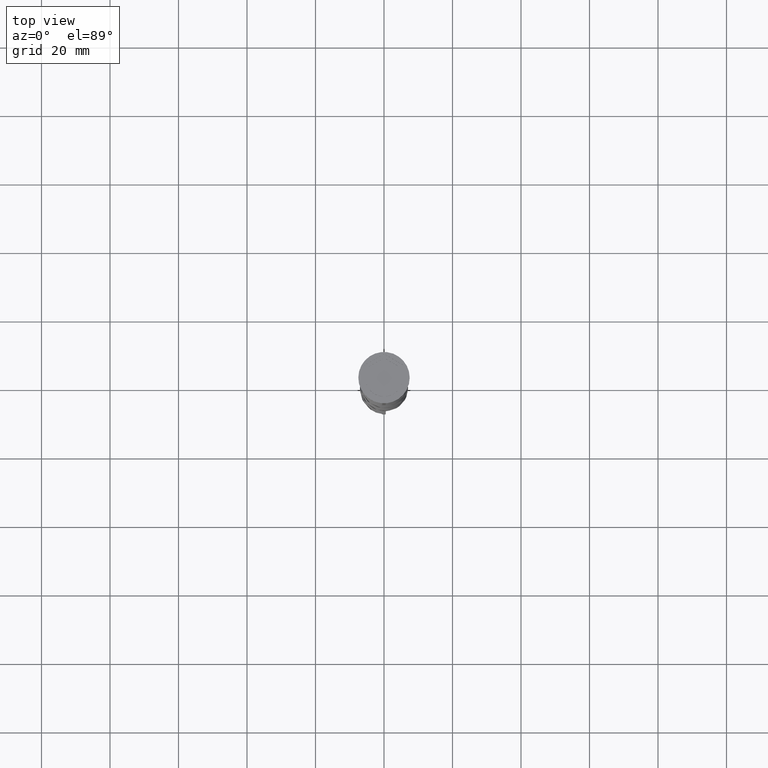
[diagram: clean part render]
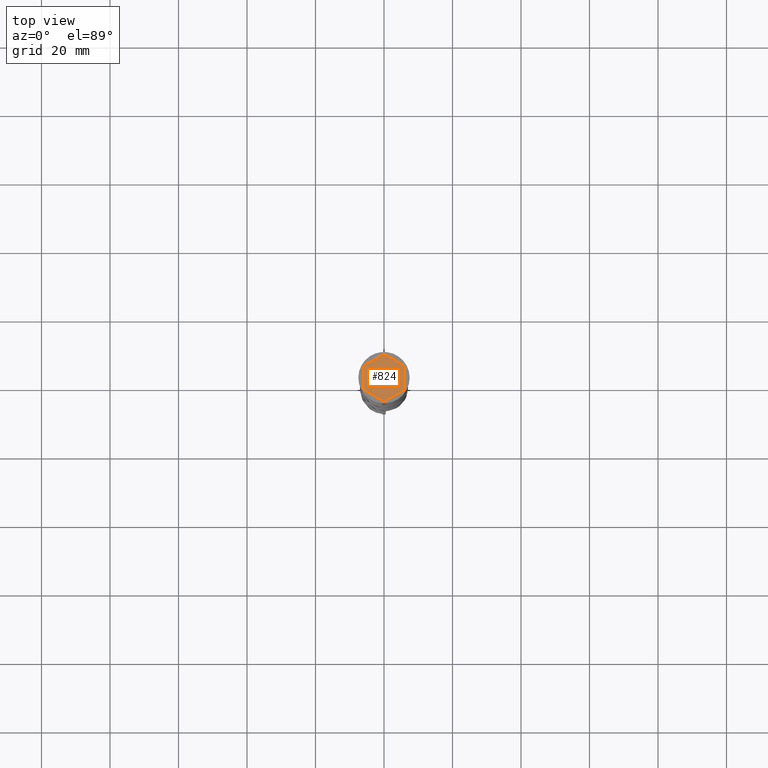
[diagram: same view with one face highlighted and labeled with its STEP entity id]
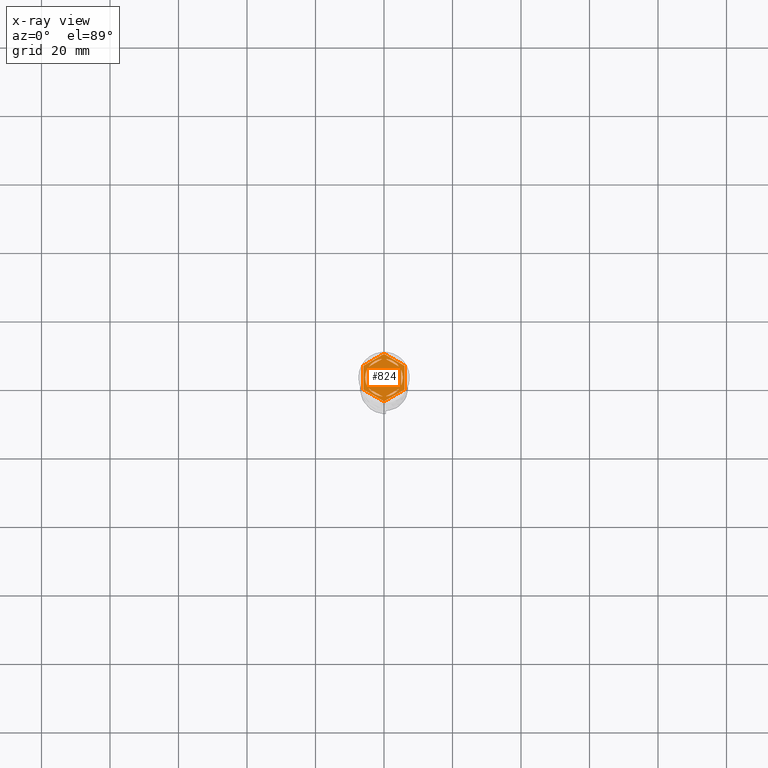
[diagram: x-ray of the same camera — body ghosted, the highlighted face saturated]
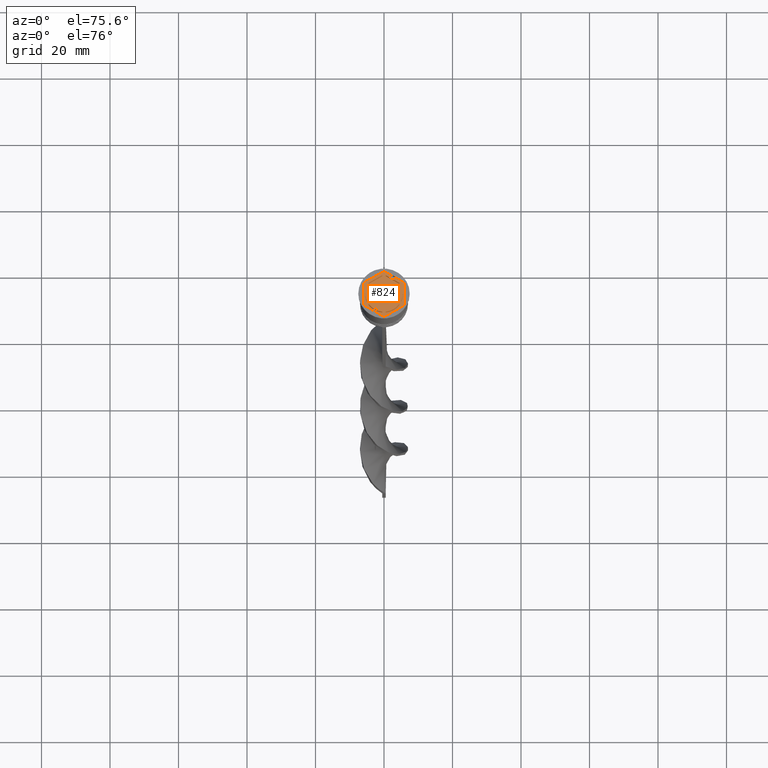
[diagram: same view with one face highlighted and labeled with its STEP entity id]
A machine part, top view. The second image highlights one B-rep face of the part: STEP entity #824.
The next image is the same camera in x-ray: the body ghosted, the highlighted face saturated — about 0% of this face is hidden behind the body in this view.
A second angle (auxiliary view) of the same face is appended — the face is thin or edge-on in the first view.
In plain terms, the highlighted planar face has unit normal (0, 0, 1).
Its self-contained STEP definition (entity closure, byte-faithful):
#8 = VERTEX_POINT ( 'NONE', #3751 ) ;
#9 = VECTOR ( 'NONE', #3438, 1000.000000000000114 ) ;
#17 = CIRCLE ( 'NONE', #406, 5.500000000000001776 ) ;
#37 = EDGE_CURVE ( 'NONE', #2594, #531, #1020, .T. ) ;
#62 = CIRCLE ( 'NONE', #2059, 5.500000000000001776 ) ;
#81 = DIRECTION ( 'NONE',  ( 1.000000000000000000, 0.000000000000000000, 0.000000000000000000 ) ) ;
#133 = CARTESIAN_POINT ( 'NONE',  ( 0.000000000000000000, 0.000000000000000000, -1.000000000000000000 ) ) ;
#146 = AXIS2_PLACEMENT_3D ( 'NONE', #3832, #458, #1956 ) ;
#229 = CARTESIAN_POINT ( 'NONE',  ( 0.5156865167015596274, 5.475770942661155161, -1.000000000000000888 ) ) ;
#326 = DIRECTION ( 'NONE',  ( -0.8660254037844385966, -0.4999999999999998890, 0.000000000000000000 ) ) ;
#337 = EDGE_CURVE ( 'NONE', #999, #8, #3283, .T. ) ;
#348 = VERTEX_POINT ( 'NONE', #900 ) ;
#353 = VERTEX_POINT ( 'NONE', #1783 ) ;
#368 = CARTESIAN_POINT ( 'NONE',  ( 6.000000000000000000, 3.464101615137753942, -1.000000000000000000 ) ) ;
#406 = AXIS2_PLACEMENT_3D ( 'NONE', #1600, #2133, #1849 ) ;
#420 = DIRECTION ( 'NONE',  ( 0.000000000000000000, 0.000000000000000000, 1.000000000000000000 ) ) ;
#446 = AXIS2_PLACEMENT_3D ( 'NONE', #1772, #2296, #3223 ) ;
#450 = VERTEX_POINT ( 'NONE', #3637 ) ;
#458 = DIRECTION ( 'NONE',  ( 0.000000000000000000, 0.000000000000000000, 1.000000000000000000 ) ) ;
#485 = DIRECTION ( 'NONE',  ( -3.004629197474317076E-16, -1.000000000000000000, 0.000000000000000000 ) ) ;
#500 = CARTESIAN_POINT ( 'NONE',  ( 4.999999999999999112, -2.886751345948130432, -1.000000000000000888 ) ) ;
#517 = PLANE ( 'NONE',  #446 ) ;
#525 = CARTESIAN_POINT ( 'NONE',  ( 0.5156865167015526330, -5.475770942661155161, -1.000000000000000888 ) ) ;
#531 = VERTEX_POINT ( 'NONE', #3777 ) ;
#591 = CARTESIAN_POINT ( 'NONE',  ( -5.000000000000000888, -2.886751345948129099, -1.000000000000000888 ) ) ;
#600 = DIRECTION ( 'NONE',  ( 2.503857664561932376E-16, 1.000000000000000000, 0.000000000000000000 ) ) ;
#633 = EDGE_LOOP ( 'NONE', ( #3552, #1551 ) ) ;
#636 = AXIS2_PLACEMENT_3D ( 'NONE', #2180, #420, #81 ) ;
#647 = EDGE_CURVE ( 'NONE', #3686, #450, #2394, .T. ) ;
#654 = DIRECTION ( 'NONE',  ( 0.8660254037844385966, 0.5000000000000001110, -0.000000000000000000 ) ) ;
#662 = CARTESIAN_POINT ( 'NONE',  ( 6.000000000000000000, 3.464101615137753942, -1.000000000000000000 ) ) ;
#677 = EDGE_LOOP ( 'NONE', ( #705, #1811, #844 ) ) ;
#691 = EDGE_CURVE ( 'NONE', #8, #999, #2741, .T. ) ;
#701 = VERTEX_POINT ( 'NONE', #2454 ) ;
#705 = ORIENTED_EDGE ( 'NONE', *, *, #851, .F. ) ;
#769 = VECTOR ( 'NONE', #2073, 1000.000000000000000 ) ;
#770 = VERTEX_POINT ( 'NONE', #2896 ) ;
#795 = CARTESIAN_POINT ( 'NONE',  ( 5.999999999999998224, -3.464101615137753942, -1.000000000000000000 ) ) ;
#800 = VERTEX_POINT ( 'NONE', #3840 ) ;
#824 = ADVANCED_FACE ( 'NONE', ( #3243, #2313, #1118, #2598, #3568, #1997, #1472 ), #517, .T. ) ;
#828 = ORIENTED_EDGE ( 'NONE', *, *, #2460, .T. ) ;
#844 = ORIENTED_EDGE ( 'NONE', *, *, #856, .F. ) ;
#851 = EDGE_CURVE ( 'NONE', #770, #3076, #1008, .T. ) ;
#856 = EDGE_CURVE ( 'NONE', #3076, #800, #62, .T. ) ;
#876 = DIRECTION ( 'NONE',  ( 0.8660254037844385966, 0.5000000000000000000, 0.000000000000000000 ) ) ;
#894 = VECTOR ( 'NONE', #876, 1000.000000000000227 ) ;
#900 = CARTESIAN_POINT ( 'NONE',  ( -4.484313483298445036, -3.184483095183233470, -1.000000000000000888 ) ) ;
#916 = CARTESIAN_POINT ( 'NONE',  ( 5.999999999999998224, -3.464101615137753942, -1.000000000000000000 ) ) ;
#921 = CARTESIAN_POINT ( 'NONE',  ( 0.000000000000000000, 0.000000000000000000, -1.000000000000000000 ) ) ;
#930 = EDGE_LOOP ( 'NONE', ( #2118, #3728 ) ) ;
#981 = LINE ( 'NONE', #662, #3715 ) ;
#986 = ORIENTED_EDGE ( 'NONE', *, *, #1912, .F. ) ;
#999 = VERTEX_POINT ( 'NONE', #1487 ) ;
#1008 = CIRCLE ( 'NONE', #3327, 5.500000000000001776 ) ;
#1020 = CIRCLE ( 'NONE', #1142, 5.500000000000001776 ) ;
#1060 = EDGE_CURVE ( 'NONE', #701, #1448, #1437, .T. ) ;
#1087 = DIRECTION ( 'NONE',  ( -0.8660254037844387076, -0.4999999999999997224, 0.000000000000000000 ) ) ;
#1118 = FACE_BOUND ( 'NONE', #930, .T. ) ;
#1130 = EDGE_LOOP ( 'NONE', ( #2304, #3490 ) ) ;
#1142 = AXIS2_PLACEMENT_3D ( 'NONE', #133, #3695, #1901 ) ;
#1214 = VECTOR ( 'NONE', #600, 1000.000000000000000 ) ;
#1227 = EDGE_CURVE ( 'NONE', #348, #2140, #2063, .T. ) ;
#1272 = VECTOR ( 'NONE', #2677, 1000.000000000000000 ) ;
#1414 = VERTEX_POINT ( 'NONE', #229 ) ;
#1421 = LINE ( 'NONE', #2606, #9 ) ;
#1428 = ORIENTED_EDGE ( 'NONE', *, *, #3653, .F. ) ;
#1437 = LINE ( 'NONE', #500, #2574 ) ;
#1448 = VERTEX_POINT ( 'NONE', #2639 ) ;
#1472 = FACE_OUTER_BOUND ( 'NONE', #2506, .T. ) ;
#1480 = DIRECTION ( 'NONE',  ( 1.000000000000000000, 0.000000000000000000, 0.000000000000000000 ) ) ;
#1487 = CARTESIAN_POINT ( 'NONE',  ( -0.5156865167015569629, 5.475770942661155161, -1.000000000000000888 ) ) ;
#1534 = LINE ( 'NONE', #916, #1214 ) ;
#1551 = ORIENTED_EDGE ( 'NONE', *, *, #3400, .F. ) ;
#1576 = ORIENTED_EDGE ( 'NONE', *, *, #1665, .T. ) ;
#1588 = ORIENTED_EDGE ( 'NONE', *, *, #2540, .T. ) ;
#1600 = CARTESIAN_POINT ( 'NONE',  ( 0.000000000000000000, 0.000000000000000000, -1.000000000000000000 ) ) ;
#1665 = EDGE_CURVE ( 'NONE', #2551, #2722, #981, .T. ) ;
#1772 = CARTESIAN_POINT ( 'NONE',  ( 0.000000000000000000, 0.000000000000000000, -1.000000000000000000 ) ) ;
#1773 = LINE ( 'NONE', #3328, #1272 ) ;
#1783 = CARTESIAN_POINT ( 'NONE',  ( 4.484313483298442371, 3.184483095183238355, -1.000000000000000888 ) ) ;
#1786 = CARTESIAN_POINT ( 'NONE',  ( -4.280685092543093048E-16, -6.928203230275507885, -1.000000000000000000 ) ) ;
#1811 = ORIENTED_EDGE ( 'NONE', *, *, #3074, .F. ) ;
#1834 = CIRCLE ( 'NONE', #146, 5.500000000000001776 ) ;
#1849 = DIRECTION ( 'NONE',  ( 1.000000000000000000, 0.000000000000000000, 0.000000000000000000 ) ) ;
#1855 = CARTESIAN_POINT ( 'NONE',  ( 0.000000000000000000, 6.928203230275506996, -1.000000000000000000 ) ) ;
#1867 = ORIENTED_EDGE ( 'NONE', *, *, #337, .F. ) ;
#1900 = CARTESIAN_POINT ( 'NONE',  ( -6.000000000000000000, -3.464101615137755719, -1.000000000000000000 ) ) ;
#1901 = DIRECTION ( 'NONE',  ( 1.000000000000000000, 0.000000000000000000, 0.000000000000000000 ) ) ;
#1912 = EDGE_CURVE ( 'NONE', #1414, #353, #1421, .T. ) ;
#1955 = VECTOR ( 'NONE', #654, 1000.000000000000000 ) ;
#1956 = DIRECTION ( 'NONE',  ( 1.000000000000000000, 0.000000000000000000, 0.000000000000000000 ) ) ;
#1986 = LINE ( 'NONE', #3768, #3726 ) ;
#1997 = FACE_BOUND ( 'NONE', #3559, .T. ) ;
#2045 = EDGE_CURVE ( 'NONE', #2558, #3686, #1773, .T. ) ;
#2059 = AXIS2_PLACEMENT_3D ( 'NONE', #921, #3297, #3318 ) ;
#2063 = CIRCLE ( 'NONE', #636, 5.500000000000001776 ) ;
#2073 = DIRECTION ( 'NONE',  ( -0.8660254037844385966, 0.5000000000000001110, 0.000000000000000000 ) ) ;
#2118 = ORIENTED_EDGE ( 'NONE', *, *, #37, .F. ) ;
#2133 = DIRECTION ( 'NONE',  ( 0.000000000000000000, 0.000000000000000000, 1.000000000000000000 ) ) ;
#2140 = VERTEX_POINT ( 'NONE', #3805 ) ;
#2180 = CARTESIAN_POINT ( 'NONE',  ( 0.000000000000000000, 0.000000000000000000, -1.000000000000000000 ) ) ;
#2296 = DIRECTION ( 'NONE',  ( 0.000000000000000000, 0.000000000000000000, 1.000000000000000000 ) ) ;
#2304 = ORIENTED_EDGE ( 'NONE', *, *, #2993, .F. ) ;
#2313 = FACE_BOUND ( 'NONE', #1130, .T. ) ;
#2394 = LINE ( 'NONE', #3007, #3537 ) ;
#2395 = VECTOR ( 'NONE', #3893, 1000.000000000000000 ) ;
#2454 = CARTESIAN_POINT ( 'NONE',  ( 5.000000000000000888, 2.291287847477922135, -1.000000000000000888 ) ) ;
#2460 = EDGE_CURVE ( 'NONE', #3880, #2551, #1534, .T. ) ;
#2506 = EDGE_LOOP ( 'NONE', ( #1576, #1588, #3483, #3341, #3222, #828 ) ) ;
#2540 = EDGE_CURVE ( 'NONE', #2722, #2558, #3013, .T. ) ;
#2551 = VERTEX_POINT ( 'NONE', #368 ) ;
#2558 = VERTEX_POINT ( 'NONE', #3292 ) ;
#2574 = VECTOR ( 'NONE', #485, 1000.000000000000000 ) ;
#2594 = VERTEX_POINT ( 'NONE', #525 ) ;
#2598 = FACE_BOUND ( 'NONE', #633, .T. ) ;
#2606 = CARTESIAN_POINT ( 'NONE',  ( 5.000000000000000888, 2.886751345948130876, -1.000000000000000888 ) ) ;
#2639 = CARTESIAN_POINT ( 'NONE',  ( 4.999999999999999112, -2.291287847477924355, -1.000000000000000888 ) ) ;
#2649 = CARTESIAN_POINT ( 'NONE',  ( -5.000000000000000888, 2.886751345948129099, -1.000000000000000888 ) ) ;
#2668 = LINE ( 'NONE', #2649, #2395 ) ;
#2677 = DIRECTION ( 'NONE',  ( 0.000000000000000000, -1.000000000000000000, 0.000000000000000000 ) ) ;
#2688 = CARTESIAN_POINT ( 'NONE',  ( 0.000000000000000000, 0.000000000000000000, -1.000000000000000000 ) ) ;
#2712 = EDGE_LOOP ( 'NONE', ( #1428, #986 ) ) ;
#2722 = VERTEX_POINT ( 'NONE', #3698 ) ;
#2741 = LINE ( 'NONE', #3345, #1955 ) ;
#2775 = DIRECTION ( 'NONE',  ( 0.8660254037844388186, -0.4999999999999997224, 0.000000000000000000 ) ) ;
#2896 = CARTESIAN_POINT ( 'NONE',  ( -5.000000000000000888, 2.291287847477921247, -1.000000000000000888 ) ) ;
#2927 = CARTESIAN_POINT ( 'NONE',  ( 0.000000000000000000, 0.000000000000000000, -1.000000000000000000 ) ) ;
#2993 = EDGE_CURVE ( 'NONE', #1448, #701, #1834, .T. ) ;
#3007 = CARTESIAN_POINT ( 'NONE',  ( -6.000000000000000000, -3.464101615137755719, -1.000000000000000000 ) ) ;
#3013 = LINE ( 'NONE', #1855, #3529 ) ;
#3074 = EDGE_CURVE ( 'NONE', #800, #770, #2668, .T. ) ;
#3076 = VERTEX_POINT ( 'NONE', #3874 ) ;
#3092 = EDGE_CURVE ( 'NONE', #450, #3880, #3855, .T. ) ;
#3114 = DIRECTION ( 'NONE',  ( -0.8660254037844387076, 0.4999999999999998335, 0.000000000000000000 ) ) ;
#3222 = ORIENTED_EDGE ( 'NONE', *, *, #3092, .T. ) ;
#3223 = DIRECTION ( 'NONE',  ( 1.000000000000000000, 0.000000000000000000, -0.000000000000000000 ) ) ;
#3243 = FACE_BOUND ( 'NONE', #2712, .T. ) ;
#3283 = CIRCLE ( 'NONE', #3852, 5.500000000000001776 ) ;
#3292 = CARTESIAN_POINT ( 'NONE',  ( -6.000000000000000000, 3.464101615137752166, -1.000000000000000000 ) ) ;
#3297 = DIRECTION ( 'NONE',  ( 0.000000000000000000, 0.000000000000000000, 1.000000000000000000 ) ) ;
#3318 = DIRECTION ( 'NONE',  ( 1.000000000000000000, 0.000000000000000000, 0.000000000000000000 ) ) ;
#3327 = AXIS2_PLACEMENT_3D ( 'NONE', #2927, #3445, #3752 ) ;
#3328 = CARTESIAN_POINT ( 'NONE',  ( -6.000000000000000000, 3.464101615137752166, -1.000000000000000000 ) ) ;
#3341 = ORIENTED_EDGE ( 'NONE', *, *, #647, .T. ) ;
#3345 = CARTESIAN_POINT ( 'NONE',  ( 4.336808689942017736E-16, 5.773502691896259087, -1.000000000000000888 ) ) ;
#3358 = DIRECTION ( 'NONE',  ( 0.000000000000000000, 0.000000000000000000, 1.000000000000000000 ) ) ;
#3400 = EDGE_CURVE ( 'NONE', #2140, #348, #3581, .T. ) ;
#3438 = DIRECTION ( 'NONE',  ( 0.8660254037844387076, -0.4999999999999998335, 0.000000000000000000 ) ) ;
#3445 = DIRECTION ( 'NONE',  ( 0.000000000000000000, 0.000000000000000000, 1.000000000000000000 ) ) ;
#3483 = ORIENTED_EDGE ( 'NONE', *, *, #2045, .T. ) ;
#3490 = ORIENTED_EDGE ( 'NONE', *, *, #1060, .F. ) ;
#3529 = VECTOR ( 'NONE', #326, 1000.000000000000227 ) ;
#3537 = VECTOR ( 'NONE', #2775, 1000.000000000000114 ) ;
#3539 = ORIENTED_EDGE ( 'NONE', *, *, #691, .F. ) ;
#3552 = ORIENTED_EDGE ( 'NONE', *, *, #1227, .F. ) ;
#3559 = EDGE_LOOP ( 'NONE', ( #1867, #3539 ) ) ;
#3568 = FACE_BOUND ( 'NONE', #677, .T. ) ;
#3581 = LINE ( 'NONE', #591, #769 ) ;
#3637 = CARTESIAN_POINT ( 'NONE',  ( -4.280685092543093048E-16, -6.928203230275507885, -1.000000000000000000 ) ) ;
#3653 = EDGE_CURVE ( 'NONE', #353, #1414, #17, .T. ) ;
#3686 = VERTEX_POINT ( 'NONE', #1900 ) ;
#3695 = DIRECTION ( 'NONE',  ( 0.000000000000000000, 0.000000000000000000, 1.000000000000000000 ) ) ;
#3698 = CARTESIAN_POINT ( 'NONE',  ( 0.000000000000000000, 6.928203230275506996, -1.000000000000000000 ) ) ;
#3715 = VECTOR ( 'NONE', #3114, 1000.000000000000000 ) ;
#3726 = VECTOR ( 'NONE', #1087, 1000.000000000000114 ) ;
#3728 = ORIENTED_EDGE ( 'NONE', *, *, #3842, .F. ) ;
#3751 = CARTESIAN_POINT ( 'NONE',  ( -4.484313483298445036, 3.184483095183233470, -1.000000000000000888 ) ) ;
#3752 = DIRECTION ( 'NONE',  ( 1.000000000000000000, 0.000000000000000000, 0.000000000000000000 ) ) ;
#3768 = CARTESIAN_POINT ( 'NONE',  ( -1.734723475976807094E-15, -5.773502691896258199, -1.000000000000000888 ) ) ;
#3777 = CARTESIAN_POINT ( 'NONE',  ( 4.484313483298445036, -3.184483095183233026, -1.000000000000000888 ) ) ;
#3805 = CARTESIAN_POINT ( 'NONE',  ( -0.5156865167015569629, -5.475770942661155161, -1.000000000000000888 ) ) ;
#3832 = CARTESIAN_POINT ( 'NONE',  ( 0.000000000000000000, 0.000000000000000000, -1.000000000000000000 ) ) ;
#3840 = CARTESIAN_POINT ( 'NONE',  ( -5.000000000000000888, -2.291287847477921247, -1.000000000000000888 ) ) ;
#3842 = EDGE_CURVE ( 'NONE', #531, #2594, #1986, .T. ) ;
#3852 = AXIS2_PLACEMENT_3D ( 'NONE', #2688, #3358, #1480 ) ;
#3855 = LINE ( 'NONE', #1786, #894 ) ;
#3874 = CARTESIAN_POINT ( 'NONE',  ( -5.500000000000001776, 0.000000000000000000, -1.000000000000000000 ) ) ;
#3880 = VERTEX_POINT ( 'NONE', #795 ) ;
#3893 = DIRECTION ( 'NONE',  ( 0.000000000000000000, 1.000000000000000000, 0.000000000000000000 ) ) ;